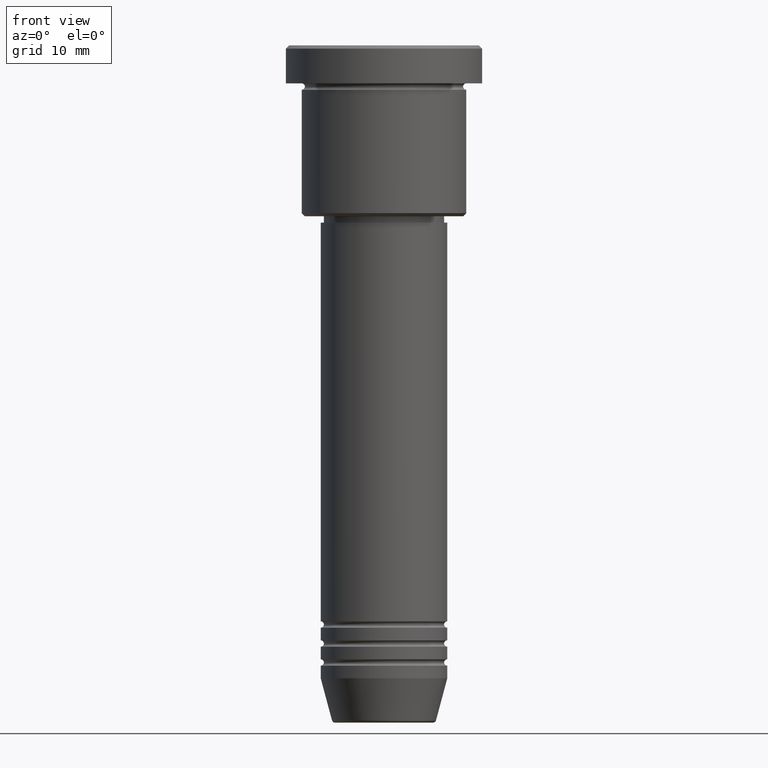
[diagram: clean part render]
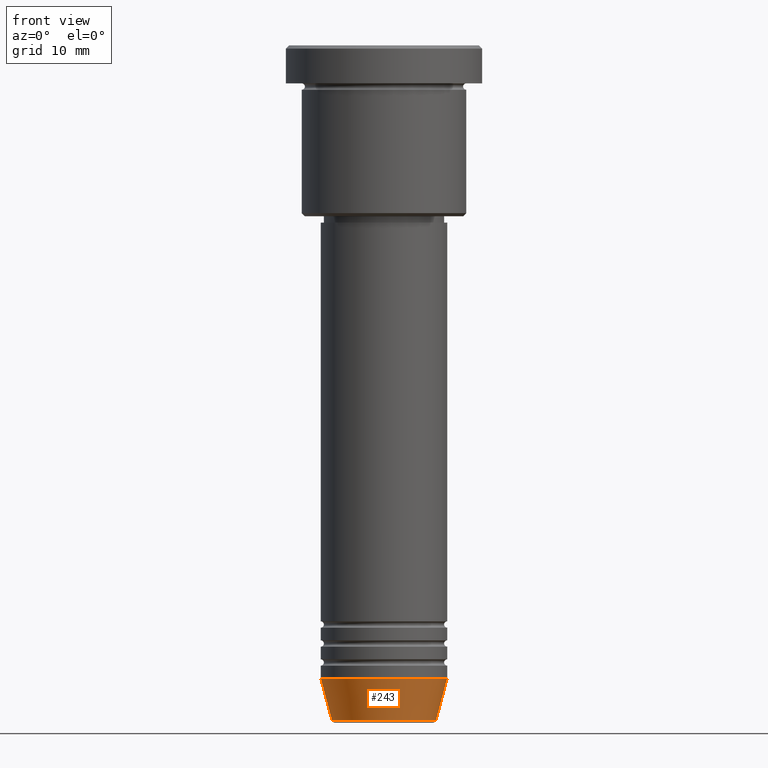
[diagram: same view with one face highlighted and labeled with its STEP entity id]
A machine part, front view. The second image highlights one B-rep face of the part: STEP entity #243.
In plain terms, the highlighted conical surface has half-angle 15 deg.
Its self-contained STEP definition (entity closure, byte-faithful):
#3 = VERTEX_POINT ( 'NONE', #28 ) ;
#12 = DIRECTION ( 'NONE',  ( 0.2588190451025213501, 0.000000000000000000, 0.9659258262890680902 ) ) ;
#18 = DIRECTION ( 'NONE',  ( -0.000000000000000000, -0.000000000000000000, 1.000000000000000000 ) ) ;
#28 = CARTESIAN_POINT ( 'NONE',  ( -10.00000000000000000, 1.224646799147353256E-15, -100.0000000000000000 ) ) ;
#31 = VERTEX_POINT ( 'NONE', #635 ) ;
#36 = CARTESIAN_POINT ( 'NONE',  ( 0.000000000000000000, 0.000000000000000000, -100.0000000000000000 ) ) ;
#43 = VERTEX_POINT ( 'NONE', #823 ) ;
#48 = EDGE_CURVE ( 'NONE', #3, #31, #486, .T. ) ;
#81 = ORIENTED_EDGE ( 'NONE', *, *, #313, .F. ) ;
#85 = AXIS2_PLACEMENT_3D ( 'NONE', #1000, #18, #1021 ) ;
#101 = LINE ( 'NONE', #458, #253 ) ;
#243 = ADVANCED_FACE ( 'NONE', ( #859 ), #633, .T. ) ;
#253 = VECTOR ( 'NONE', #12, 1000.000000000000000 ) ;
#313 = EDGE_CURVE ( 'NONE', #916, #3, #332, .T. ) ;
#314 = EDGE_LOOP ( 'NONE', ( #81, #728, #786, #1181 ) ) ;
#332 = LINE ( 'NONE', #969, #766 ) ;
#442 = EDGE_CURVE ( 'NONE', #916, #43, #1179, .T. ) ;
#457 = EDGE_CURVE ( 'NONE', #43, #31, #101, .T. ) ;
#458 = CARTESIAN_POINT ( 'NONE',  ( 10.00000000000000000, 0.000000000000000000, -100.0000000000000000 ) ) ;
#486 = CIRCLE ( 'NONE', #85, 10.00000000000000000 ) ;
#505 = CARTESIAN_POINT ( 'NONE',  ( -8.223655072137191269, 1.115877042642912054E-15, -106.6294095225512564 ) ) ;
#563 = AXIS2_PLACEMENT_3D ( 'NONE', #36, #865, #577 ) ;
#577 = DIRECTION ( 'NONE',  ( 1.000000000000000000, 0.000000000000000000, 0.000000000000000000 ) ) ;
#633 = CONICAL_SURFACE ( 'NONE', #563, 10.00000000000000000, 0.2617993877991500740 ) ;
#635 = CARTESIAN_POINT ( 'NONE',  ( 10.00000000000000000, 0.000000000000000000, -100.0000000000000000 ) ) ;
#642 = DIRECTION ( 'NONE',  ( -0.000000000000000000, -0.000000000000000000, 1.000000000000000000 ) ) ;
#653 = AXIS2_PLACEMENT_3D ( 'NONE', #912, #642, #918 ) ;
#728 = ORIENTED_EDGE ( 'NONE', *, *, #442, .T. ) ;
#766 = VECTOR ( 'NONE', #1147, 1000.000000000000000 ) ;
#786 = ORIENTED_EDGE ( 'NONE', *, *, #457, .T. ) ;
#823 = CARTESIAN_POINT ( 'NONE',  ( 8.223655072137191269, 0.000000000000000000, -106.6294095225512564 ) ) ;
#859 = FACE_OUTER_BOUND ( 'NONE', #314, .T. ) ;
#865 = DIRECTION ( 'NONE',  ( -0.000000000000000000, -0.000000000000000000, 1.000000000000000000 ) ) ;
#912 = CARTESIAN_POINT ( 'NONE',  ( 0.000000000000000000, 0.000000000000000000, -106.6294095225512564 ) ) ;
#916 = VERTEX_POINT ( 'NONE', #505 ) ;
#918 = DIRECTION ( 'NONE',  ( 1.000000000000000000, 0.000000000000000000, 0.000000000000000000 ) ) ;
#969 = CARTESIAN_POINT ( 'NONE',  ( -10.00000000000000000, 1.224646799147353256E-15, -100.0000000000000000 ) ) ;
#1000 = CARTESIAN_POINT ( 'NONE',  ( 0.000000000000000000, 0.000000000000000000, -100.0000000000000000 ) ) ;
#1021 = DIRECTION ( 'NONE',  ( 1.000000000000000000, 0.000000000000000000, 0.000000000000000000 ) ) ;
#1147 = DIRECTION ( 'NONE',  ( -0.2588190451025213501, 3.169619151431772337E-17, 0.9659258262890680902 ) ) ;
#1179 = CIRCLE ( 'NONE', #653, 8.223655072137191269 ) ;
#1181 = ORIENTED_EDGE ( 'NONE', *, *, #48, .F. ) ;